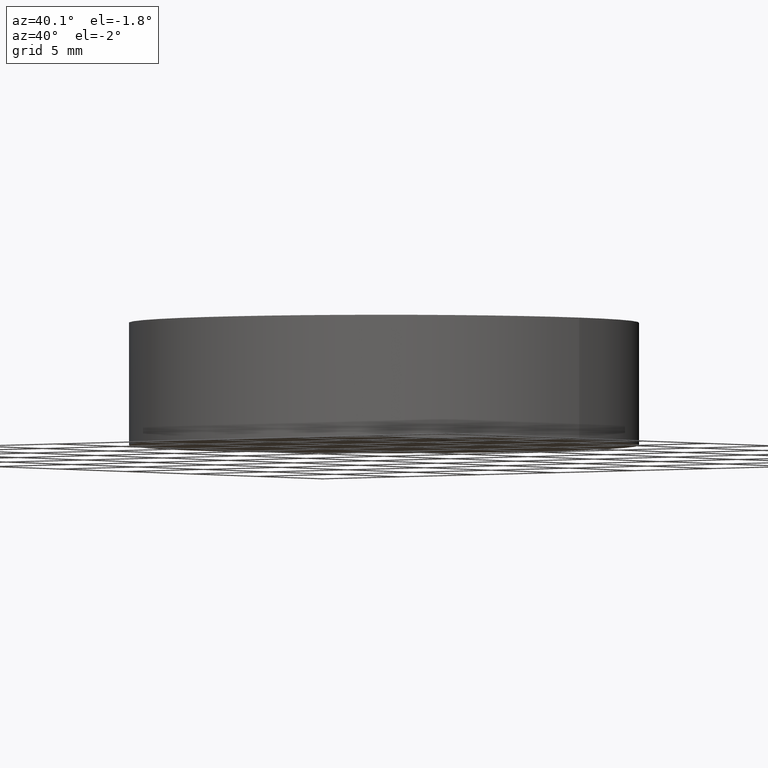
[diagram: clean part render]
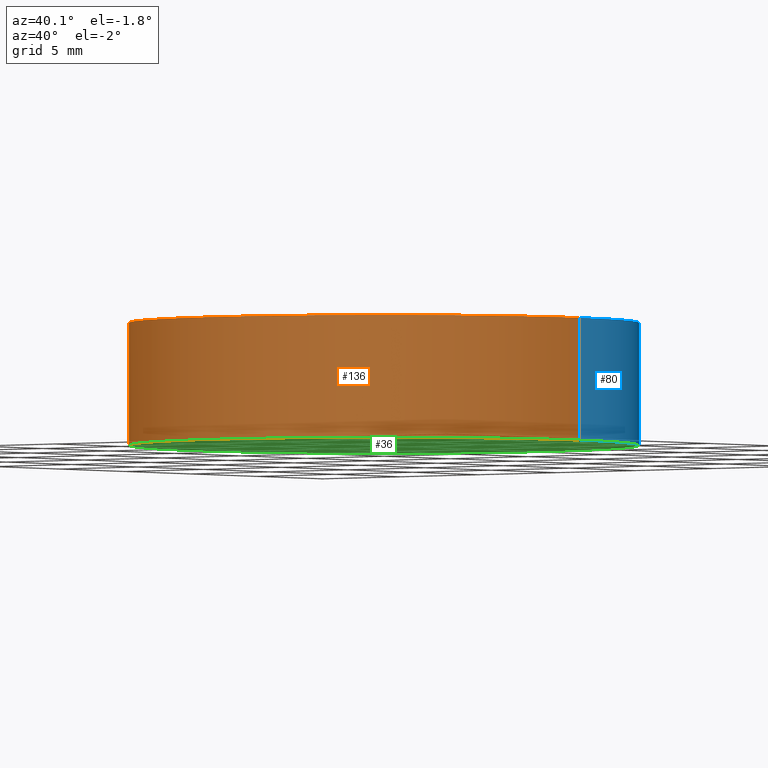
[diagram: same view with three faces highlighted in distinct colors, each labeled with its STEP entity id]
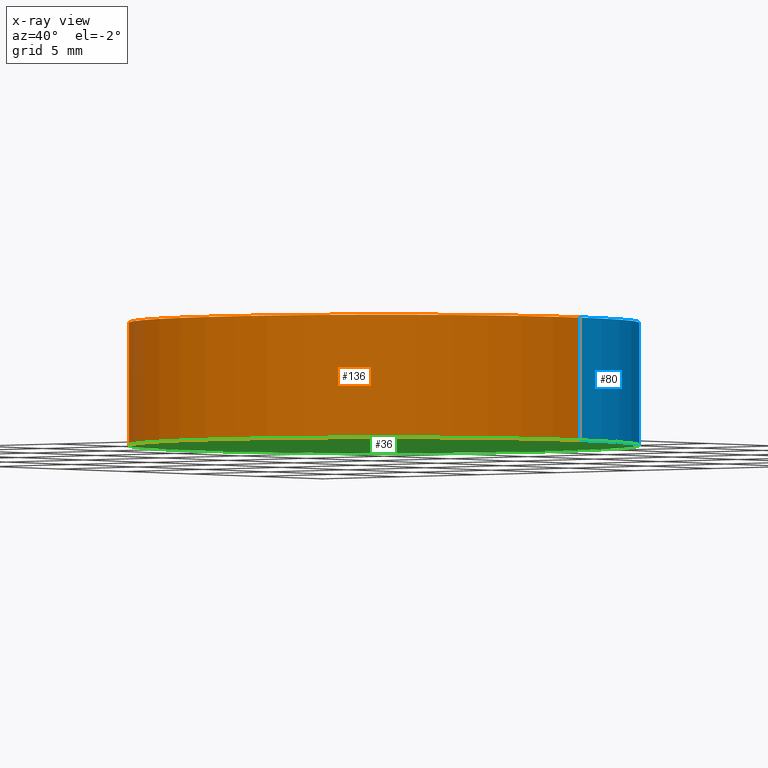
[diagram: x-ray of the same camera — body ghosted, the three highlighted faces saturated]
A machine part, auxiliary view with three faces highlighted in distinct colors.
The next image is the same camera in x-ray (body ghosted, the three faces saturated) — at least one of them is partly hidden behind the body in this view.
Their STEP definitions:

[orange] entity #136 — the highlighted cylindrical surface (partial cylindrical patch) has radius 12.5 mm, axis along (-0, -0, -1).
#3 = VERTEX_POINT ( 'NONE', #18 ) ;
#4 = DIRECTION ( 'NONE',  ( 0.0000000000000000000, 0.0000000000000000000, 1.000000000000000000 ) ) ;
#5 = CARTESIAN_POINT ( 'NONE',  ( -12.50000000000000000, 0.0000000000000000000, 6.000000000000000000 ) ) ;
#11 = VECTOR ( 'NONE', #77, 1000.000000000000000 ) ;
#13 = ORIENTED_EDGE ( 'NONE', *, *, #71, .T. ) ;
#17 = CARTESIAN_POINT ( 'NONE',  ( 12.50000000000000000, 1.530808498934191500E-015, 6.000000000000000000 ) ) ;
#18 = CARTESIAN_POINT ( 'NONE',  ( -12.50000000000000000, 0.0000000000000000000, 0.0000000000000000000 ) ) ;
#19 = AXIS2_PLACEMENT_3D ( 'NONE', #76, #4, #64 ) ;
#23 = AXIS2_PLACEMENT_3D ( 'NONE', #32, #54, #120 ) ;
#27 = CARTESIAN_POINT ( 'NONE',  ( 12.50000000000000000, 1.530808498934191500E-015, 6.000000000000000000 ) ) ;
#29 = CYLINDRICAL_SURFACE ( 'NONE', #23, 12.50000000000000000 ) ;
#31 = DIRECTION ( 'NONE',  ( 0.0000000000000000000, 0.0000000000000000000, 1.000000000000000000 ) ) ;
#32 = CARTESIAN_POINT ( 'NONE',  ( 0.0000000000000000000, 0.0000000000000000000, 6.000000000000000000 ) ) ;
#33 = ORIENTED_EDGE ( 'NONE', *, *, #89, .T. ) ;
#43 = CARTESIAN_POINT ( 'NONE',  ( -12.50000000000000000, 0.0000000000000000000, 6.000000000000000000 ) ) ;
#45 = CIRCLE ( 'NONE', #110, 12.50000000000000000 ) ;
#52 = DIRECTION ( 'NONE',  ( 1.000000000000000000, 0.0000000000000000000, 0.0000000000000000000 ) ) ;
#54 = DIRECTION ( 'NONE',  ( -0.0000000000000000000, -0.0000000000000000000, -1.000000000000000000 ) ) ;
#58 = LINE ( 'NONE', #17, #11 ) ;
#59 = ORIENTED_EDGE ( 'NONE', *, *, #96, .F. ) ;
#62 = CIRCLE ( 'NONE', #19, 12.50000000000000000 ) ;
#63 = CARTESIAN_POINT ( 'NONE',  ( 0.0000000000000000000, 0.0000000000000000000, 0.0000000000000000000 ) ) ;
#64 = DIRECTION ( 'NONE',  ( 1.000000000000000000, 0.0000000000000000000, 0.0000000000000000000 ) ) ;
#71 = EDGE_CURVE ( 'NONE', #3, #114, #45, .T. ) ;
#72 = LINE ( 'NONE', #43, #95 ) ;
#73 = EDGE_LOOP ( 'NONE', ( #59, #139, #33, #13 ) ) ;
#76 = CARTESIAN_POINT ( 'NONE',  ( 0.0000000000000000000, 0.0000000000000000000, 6.000000000000000000 ) ) ;
#77 = DIRECTION ( 'NONE',  ( -0.0000000000000000000, -0.0000000000000000000, -1.000000000000000000 ) ) ;
#89 = EDGE_CURVE ( 'NONE', #126, #3, #72, .T. ) ;
#95 = VECTOR ( 'NONE', #124, 1000.000000000000000 ) ;
#96 = EDGE_CURVE ( 'NONE', #121, #114, #58, .T. ) ;
#100 = CARTESIAN_POINT ( 'NONE',  ( 12.50000000000000000, 1.530808498934191500E-015, 0.0000000000000000000 ) ) ;
#110 = AXIS2_PLACEMENT_3D ( 'NONE', #63, #31, #52 ) ;
#112 = FACE_OUTER_BOUND ( 'NONE', #73, .T. ) ;
#114 = VERTEX_POINT ( 'NONE', #100 ) ;
#120 = DIRECTION ( 'NONE',  ( -1.000000000000000000, 0.0000000000000000000, 0.0000000000000000000 ) ) ;
#121 = VERTEX_POINT ( 'NONE', #27 ) ;
#124 = DIRECTION ( 'NONE',  ( -0.0000000000000000000, -0.0000000000000000000, -1.000000000000000000 ) ) ;
#126 = VERTEX_POINT ( 'NONE', #5 ) ;
#136 = ADVANCED_FACE ( 'NONE', ( #112 ), #29, .T. ) ;
#137 = EDGE_CURVE ( 'NONE', #126, #121, #62, .T. ) ;
#139 = ORIENTED_EDGE ( 'NONE', *, *, #137, .F. ) ;

[blue] entity #80 — the highlighted cylindrical surface (partial cylindrical patch) has radius 12.5 mm, axis along (-0, -0, -1).
#3 = VERTEX_POINT ( 'NONE', #18 ) ;
#5 = CARTESIAN_POINT ( 'NONE',  ( -12.50000000000000000, 0.0000000000000000000, 6.000000000000000000 ) ) ;
#6 = DIRECTION ( 'NONE',  ( 1.000000000000000000, 0.0000000000000000000, 0.0000000000000000000 ) ) ;
#11 = VECTOR ( 'NONE', #77, 1000.000000000000000 ) ;
#17 = CARTESIAN_POINT ( 'NONE',  ( 12.50000000000000000, 1.530808498934191500E-015, 6.000000000000000000 ) ) ;
#18 = CARTESIAN_POINT ( 'NONE',  ( -12.50000000000000000, 0.0000000000000000000, 0.0000000000000000000 ) ) ;
#20 = CARTESIAN_POINT ( 'NONE',  ( 0.0000000000000000000, 0.0000000000000000000, 6.000000000000000000 ) ) ;
#27 = CARTESIAN_POINT ( 'NONE',  ( 12.50000000000000000, 1.530808498934191500E-015, 6.000000000000000000 ) ) ;
#34 = CARTESIAN_POINT ( 'NONE',  ( 0.0000000000000000000, 0.0000000000000000000, 0.0000000000000000000 ) ) ;
#39 = EDGE_LOOP ( 'NONE', ( #70, #88, #69, #65 ) ) ;
#43 = CARTESIAN_POINT ( 'NONE',  ( -12.50000000000000000, 0.0000000000000000000, 6.000000000000000000 ) ) ;
#44 = CIRCLE ( 'NONE', #127, 12.50000000000000000 ) ;
#48 = EDGE_CURVE ( 'NONE', #121, #126, #128, .T. ) ;
#58 = LINE ( 'NONE', #17, #11 ) ;
#65 = ORIENTED_EDGE ( 'NONE', *, *, #89, .F. ) ;
#67 = CARTESIAN_POINT ( 'NONE',  ( 0.0000000000000000000, 0.0000000000000000000, 6.000000000000000000 ) ) ;
#69 = ORIENTED_EDGE ( 'NONE', *, *, #83, .T. ) ;
#70 = ORIENTED_EDGE ( 'NONE', *, *, #48, .F. ) ;
#72 = LINE ( 'NONE', #43, #95 ) ;
#77 = DIRECTION ( 'NONE',  ( -0.0000000000000000000, -0.0000000000000000000, -1.000000000000000000 ) ) ;
#79 = DIRECTION ( 'NONE',  ( 0.0000000000000000000, 0.0000000000000000000, 1.000000000000000000 ) ) ;
#80 = ADVANCED_FACE ( 'NONE', ( #103 ), #132, .T. ) ;
#83 = EDGE_CURVE ( 'NONE', #114, #3, #44, .T. ) ;
#88 = ORIENTED_EDGE ( 'NONE', *, *, #96, .T. ) ;
#89 = EDGE_CURVE ( 'NONE', #126, #3, #72, .T. ) ;
#91 = DIRECTION ( 'NONE',  ( 1.000000000000000000, 0.0000000000000000000, 0.0000000000000000000 ) ) ;
#93 = DIRECTION ( 'NONE',  ( -0.0000000000000000000, -0.0000000000000000000, -1.000000000000000000 ) ) ;
#95 = VECTOR ( 'NONE', #124, 1000.000000000000000 ) ;
#96 = EDGE_CURVE ( 'NONE', #121, #114, #58, .T. ) ;
#100 = CARTESIAN_POINT ( 'NONE',  ( 12.50000000000000000, 1.530808498934191500E-015, 0.0000000000000000000 ) ) ;
#101 = DIRECTION ( 'NONE',  ( 0.0000000000000000000, 0.0000000000000000000, 1.000000000000000000 ) ) ;
#103 = FACE_OUTER_BOUND ( 'NONE', #39, .T. ) ;
#114 = VERTEX_POINT ( 'NONE', #100 ) ;
#115 = DIRECTION ( 'NONE',  ( -1.000000000000000000, 0.0000000000000000000, 0.0000000000000000000 ) ) ;
#121 = VERTEX_POINT ( 'NONE', #27 ) ;
#123 = AXIS2_PLACEMENT_3D ( 'NONE', #20, #79, #6 ) ;
#124 = DIRECTION ( 'NONE',  ( -0.0000000000000000000, -0.0000000000000000000, -1.000000000000000000 ) ) ;
#126 = VERTEX_POINT ( 'NONE', #5 ) ;
#127 = AXIS2_PLACEMENT_3D ( 'NONE', #34, #101, #91 ) ;
#128 = CIRCLE ( 'NONE', #123, 12.50000000000000000 ) ;
#132 = CYLINDRICAL_SURFACE ( 'NONE', #135, 12.50000000000000000 ) ;
#135 = AXIS2_PLACEMENT_3D ( 'NONE', #67, #93, #115 ) ;

[green] entity #36 — the highlighted planar face has unit normal (0, 0, 1).
#3 = VERTEX_POINT ( 'NONE', #18 ) ;
#9 = ORIENTED_EDGE ( 'NONE', *, *, #71, .F. ) ;
#15 = AXIS2_PLACEMENT_3D ( 'NONE', #111, #57, #125 ) ;
#18 = CARTESIAN_POINT ( 'NONE',  ( -12.50000000000000000, 0.0000000000000000000, 0.0000000000000000000 ) ) ;
#21 = PLANE ( 'NONE',  #15 ) ;
#31 = DIRECTION ( 'NONE',  ( 0.0000000000000000000, 0.0000000000000000000, 1.000000000000000000 ) ) ;
#34 = CARTESIAN_POINT ( 'NONE',  ( 0.0000000000000000000, 0.0000000000000000000, 0.0000000000000000000 ) ) ;
#36 = ADVANCED_FACE ( 'NONE', ( #108 ), #21, .F. ) ;
#44 = CIRCLE ( 'NONE', #127, 12.50000000000000000 ) ;
#45 = CIRCLE ( 'NONE', #110, 12.50000000000000000 ) ;
#47 = EDGE_LOOP ( 'NONE', ( #9, #86 ) ) ;
#52 = DIRECTION ( 'NONE',  ( 1.000000000000000000, 0.0000000000000000000, 0.0000000000000000000 ) ) ;
#57 = DIRECTION ( 'NONE',  ( 0.0000000000000000000, 0.0000000000000000000, 1.000000000000000000 ) ) ;
#63 = CARTESIAN_POINT ( 'NONE',  ( 0.0000000000000000000, 0.0000000000000000000, 0.0000000000000000000 ) ) ;
#71 = EDGE_CURVE ( 'NONE', #3, #114, #45, .T. ) ;
#83 = EDGE_CURVE ( 'NONE', #114, #3, #44, .T. ) ;
#86 = ORIENTED_EDGE ( 'NONE', *, *, #83, .F. ) ;
#91 = DIRECTION ( 'NONE',  ( 1.000000000000000000, 0.0000000000000000000, 0.0000000000000000000 ) ) ;
#100 = CARTESIAN_POINT ( 'NONE',  ( 12.50000000000000000, 1.530808498934191500E-015, 0.0000000000000000000 ) ) ;
#101 = DIRECTION ( 'NONE',  ( 0.0000000000000000000, 0.0000000000000000000, 1.000000000000000000 ) ) ;
#108 = FACE_OUTER_BOUND ( 'NONE', #47, .T. ) ;
#110 = AXIS2_PLACEMENT_3D ( 'NONE', #63, #31, #52 ) ;
#111 = CARTESIAN_POINT ( 'NONE',  ( 0.0000000000000000000, 0.0000000000000000000, 0.0000000000000000000 ) ) ;
#114 = VERTEX_POINT ( 'NONE', #100 ) ;
#125 = DIRECTION ( 'NONE',  ( 1.000000000000000000, 0.0000000000000000000, -0.0000000000000000000 ) ) ;
#127 = AXIS2_PLACEMENT_3D ( 'NONE', #34, #101, #91 ) ;